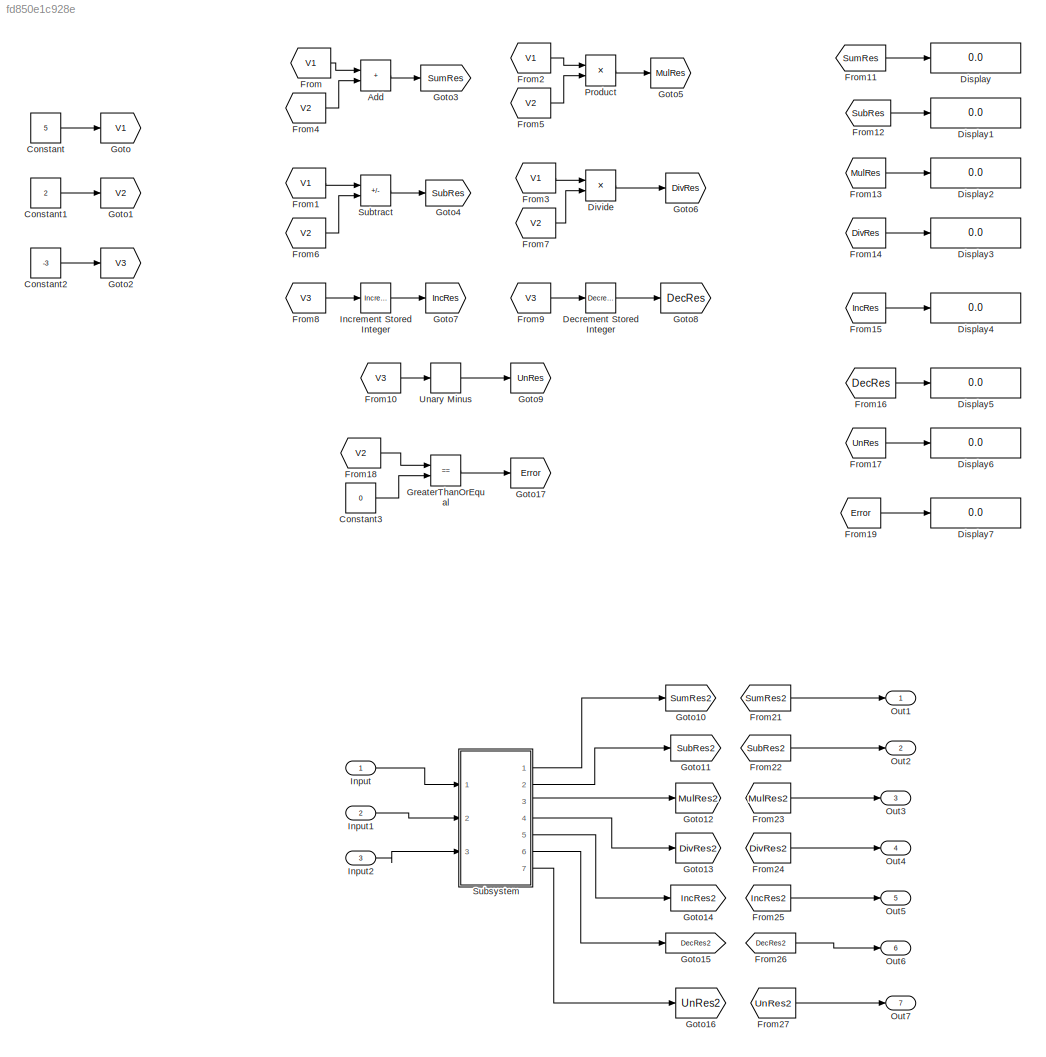
MODEL slx_fd850e1c928e
KIND model
CONFIG AbsTol = auto
CONFIG EnableMultiTasking = off
CONFIG FixedStep = auto
CONFIG MaxStep = auto
CONFIG MinStep = auto
CONFIG RelTol = 1e-3
CONFIG SampleTimeConstraint = Unconstrained
CONFIG SolverName = FixedStepDiscrete
CONFIG StartTime = 0.0
CONFIG StopTime = 10.0
BLOCK [Sum] Add
  IconShape = rectangular
  Ports = [2, 1]
BLOCK [Constant] Constant
  Value = 5
BLOCK [Constant] Constant1
  Value = 2
BLOCK [Constant] Constant2
  Value = -3
BLOCK [Constant] Constant3
  Value = 0
BLOCK [Reference] Decrement Stored Integer  REF=simulink/Additional Math
& Discrete/Additional Math:
Increment - Decrement/Decrement
Stored Integer
  Ports = [1, 1]
  SourceBlock = simulink/Additional Math\n& Discrete/Additional Math:\nIncrement - Decrement/Decrement\nStored Integer
  SourceProductBaseCode = SL
  SourceType = Stored Integer Value Decrement
BLOCK [Display] Display
  Decimation = 1
  Ports = [1]
BLOCK [Display] Display1
  Decimation = 1
  Ports = [1]
BLOCK [Display] Display2
  Decimation = 1
  Ports = [1]
BLOCK [Display] Display3
  Decimation = 1
  Ports = [1]
BLOCK [Display] Display4
  Decimation = 1
  Ports = [1]
BLOCK [Display] Display5
  Decimation = 1
  Ports = [1]
BLOCK [Display] Display6
  Decimation = 1
  Ports = [1]
BLOCK [Display] Display7
  Decimation = 1
  Ports = [1]
BLOCK [Product] Divide
  Inputs = */
  Ports = [2, 1]
BLOCK [From] From
  GotoTag = V1
BLOCK [From] From1
  GotoTag = V1
BLOCK [From] From10
  GotoTag = V3
BLOCK [From] From11
  GotoTag = SumRes
BLOCK [From] From12
  GotoTag = SubRes
BLOCK [From] From13
  GotoTag = MulRes
BLOCK [From] From14
  GotoTag = DivRes
BLOCK [From] From15
  GotoTag = IncRes
BLOCK [From] From16
  GotoTag = DecRes
BLOCK [From] From17
  GotoTag = UnRes
BLOCK [From] From18
  GotoTag = V2
BLOCK [From] From19
  GotoTag = Error
BLOCK [From] From2
  GotoTag = V1
BLOCK [From] From21
  GotoTag = SumRes2
BLOCK [From] From22
  GotoTag = SubRes2
BLOCK [From] From23
  GotoTag = MulRes2
BLOCK [From] From24
  GotoTag = DivRes2
BLOCK [From] From25
  GotoTag = IncRes2
BLOCK [From] From26
  GotoTag = DecRes2
BLOCK [From] From27
  GotoTag = UnRes2
BLOCK [From] From3
  GotoTag = V1
BLOCK [From] From4
  GotoTag = V2
BLOCK [From] From5
  GotoTag = V2
BLOCK [From] From6
  GotoTag = V2
BLOCK [From] From7
  GotoTag = V2
BLOCK [From] From8
  GotoTag = V3
BLOCK [From] From9
  GotoTag = V3
BLOCK [Goto] Goto
  GotoTag = V1
BLOCK [Goto] Goto1
  GotoTag = V2
BLOCK [Goto] Goto10
  GotoTag = SumRes2
BLOCK [Goto] Goto11
  GotoTag = SubRes2
BLOCK [Goto] Goto12
  GotoTag = MulRes2
BLOCK [Goto] Goto13
  GotoTag = DivRes2
BLOCK [Goto] Goto14
  GotoTag = IncRes2
BLOCK [Goto] Goto15
  GotoTag = DecRes2
BLOCK [Goto] Goto16
  GotoTag = UnRes2
BLOCK [Goto] Goto17
  GotoTag = Error
BLOCK [Goto] Goto2
  GotoTag = V3
BLOCK [Goto] Goto3
  GotoTag = SumRes
BLOCK [Goto] Goto4
  GotoTag = SubRes
BLOCK [Goto] Goto5
  GotoTag = MulRes
BLOCK [Goto] Goto6
  GotoTag = DivRes
BLOCK [Goto] Goto7
  GotoTag = IncRes
BLOCK [Goto] Goto8
  GotoTag = DecRes
BLOCK [Goto] Goto9
  GotoTag = UnRes
BLOCK [RelationalOperator] GreaterThanOrEqual
  InputSameDT = off
  Operator = ==
  OutDataTypeStr = boolean
  Ports = [2, 1]
  RndMeth = Simplest
BLOCK [Reference] Increment Stored Integer  REF=simulink/Additional Math
& Discrete/Additional Math:
Increment - Decrement/Increment
Stored Integer
  Ports = [1, 1]
  SourceBlock = simulink/Additional Math\n& Discrete/Additional Math:\nIncrement - Decrement/Increment\nStored Integer
  SourceProductBaseCode = SL
  SourceType = Stored Integer Value Increment
BLOCK [Inport] Input
BLOCK [Inport] Input1
  Port = 2
BLOCK [Inport] Input2
  Port = 3
BLOCK [Outport] Out1
BLOCK [Outport] Out2
  Port = 2
BLOCK [Outport] Out3
  Port = 3
BLOCK [Outport] Out4
  Port = 4
BLOCK [Outport] Out5
  Port = 5
BLOCK [Outport] Out6
  Port = 6
BLOCK [Outport] Out7
  Port = 7
BLOCK [Product] Product
  Ports = [2, 1]
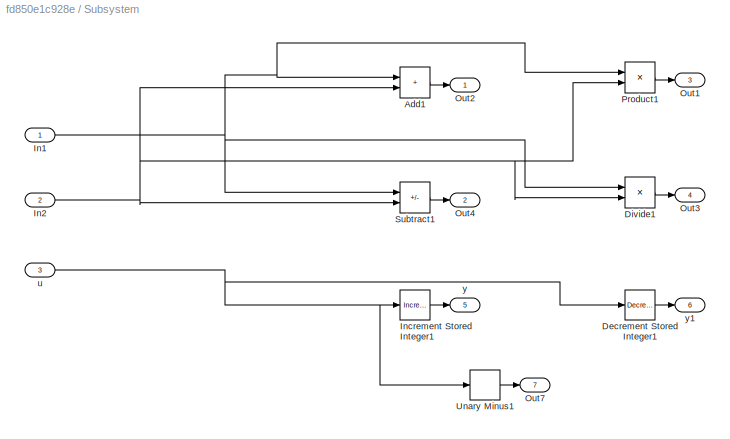
BLOCK [SubSystem] Subsystem
  Ports = [3, 7]
  RequestExecContextInheritance = off
BLOCK [Sum] Subsystem/Add1
  IconShape = rectangular
  Ports = [2, 1]
BLOCK [Reference] Subsystem/Decrement Stored Integer1  REF=simulink/Additional Math
& Discrete/Additional Math:
Increment - Decrement/Decrement
Stored Integer
  Ports = [1, 1]
  SourceBlock = simulink/Additional Math\n& Discrete/Additional Math:\nIncrement - Decrement/Decrement\nStored Integer
  SourceProductBaseCode = SL
  SourceType = Stored Integer Value Decrement
BLOCK [Product] Subsystem/Divide1
  Inputs = */
  Ports = [2, 1]
BLOCK [Inport] Subsystem/In1
BLOCK [Inport] Subsystem/In2
  Port = 2
BLOCK [Reference] Subsystem/Increment Stored Integer1  REF=simulink/Additional Math
& Discrete/Additional Math:
Increment - Decrement/Increment
Stored Integer
  Ports = [1, 1]
  SourceBlock = simulink/Additional Math\n& Discrete/Additional Math:\nIncrement - Decrement/Increment\nStored Integer
  SourceProductBaseCode = SL
  SourceType = Stored Integer Value Increment
BLOCK [Outport] Subsystem/Out1
  Port = 3
BLOCK [Outport] Subsystem/Out2
BLOCK [Outport] Subsystem/Out3
  Port = 4
BLOCK [Outport] Subsystem/Out4
  Port = 2
BLOCK [Outport] Subsystem/Out7
  Port = 7
BLOCK [Product] Subsystem/Product1
  Ports = [2, 1]
BLOCK [Sum] Subsystem/Subtract1
  IconShape = rectangular
  Inputs = +-
  Ports = [2, 1]
BLOCK [UnaryMinus] Subsystem/Unary Minus1
BLOCK [Inport] Subsystem/u
  Port = 3
BLOCK [Outport] Subsystem/y
  Port = 5
BLOCK [Outport] Subsystem/y1
  Port = 6
BLOCK [Sum] Subtract
  IconShape = rectangular
  Inputs = +-
  Ports = [2, 1]
BLOCK [UnaryMinus] Unary Minus
LINE Add:1 -> Goto3:1
LINE Constant1:1 -> Goto1:1
LINE Constant2:1 -> Goto2:1
LINE Constant3:1 -> GreaterThanOrEqual:2
LINE Constant:1 -> Goto:1
LINE Decrement Stored Integer:1 -> Goto8:1
LINE Divide:1 -> Goto6:1
LINE From10:1 -> Unary Minus:1
LINE From11:1 -> Display:1
LINE From12:1 -> Display1:1
LINE From13:1 -> Display2:1
LINE From14:1 -> Display3:1
LINE From15:1 -> Display4:1
LINE From16:1 -> Display5:1
LINE From17:1 -> Display6:1
LINE From18:1 -> GreaterThanOrEqual:1
LINE From19:1 -> Display7:1
LINE From1:1 -> Subtract:1
LINE From21:1 -> Out1:1
LINE From22:1 -> Out2:1
LINE From23:1 -> Out3:1
LINE From24:1 -> Out4:1
LINE From25:1 -> Out5:1
LINE From26:1 -> Out6:1
LINE From27:1 -> Out7:1
LINE From2:1 -> Product:1
LINE From3:1 -> Divide:1
LINE From4:1 -> Add:2
LINE From5:1 -> Product:2
LINE From6:1 -> Subtract:2
LINE From7:1 -> Divide:2
LINE From8:1 -> Increment Stored Integer:1
LINE From9:1 -> Decrement Stored Integer:1
LINE From:1 -> Add:1
LINE GreaterThanOrEqual:1 -> Goto17:1
LINE Increment Stored Integer:1 -> Goto7:1
LINE Input1:1 -> Subsystem:2
LINE Input2:1 -> Subsystem:3
LINE Input:1 -> Subsystem:1
LINE Product:1 -> Goto5:1
LINE Subsystem/Add1:1 -> Subsystem/Out2:1
LINE Subsystem/Decrement Stored Integer1:1 -> Subsystem/y1:1
LINE Subsystem/Divide1:1 -> Subsystem/Out3:1
NET Subsystem/In1:1 -> Subsystem/Add1:1, Subsystem/Divide1:1, Subsystem/Product1:1, Subsystem/Subtract1:1
NET Subsystem/In2:1 -> Subsystem/Add1:2, Subsystem/Divide1:2, Subsystem/Product1:2, Subsystem/Subtract1:2
LINE Subsystem/Increment Stored Integer1:1 -> Subsystem/y:1
LINE Subsystem/Product1:1 -> Subsystem/Out1:1
LINE Subsystem/Subtract1:1 -> Subsystem/Out4:1
LINE Subsystem/Unary Minus1:1 -> Subsystem/Out7:1
NET Subsystem/u:1 -> Subsystem/Decrement Stored Integer1:1, Subsystem/Increment Stored Integer1:1, Subsystem/Unary Minus1:1
LINE Subsystem:1 -> Goto10:1
LINE Subsystem:2 -> Goto11:1
LINE Subsystem:3 -> Goto12:1
LINE Subsystem:4 -> Goto13:1
LINE Subsystem:5 -> Goto14:1
LINE Subsystem:6 -> Goto15:1
LINE Subsystem:7 -> Goto16:1
LINE Subtract:1 -> Goto4:1
LINE Unary Minus:1 -> Goto9:1
note: NET lines group one-source signal fan-out (src -> all destinations, sorted); 1:1 wires keep LINE
